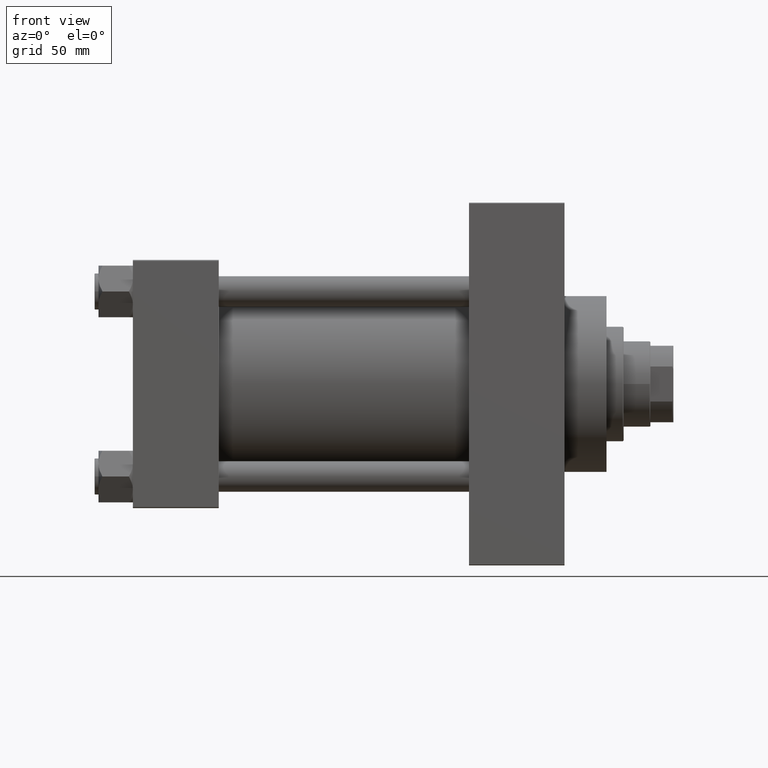
[diagram: clean part render]
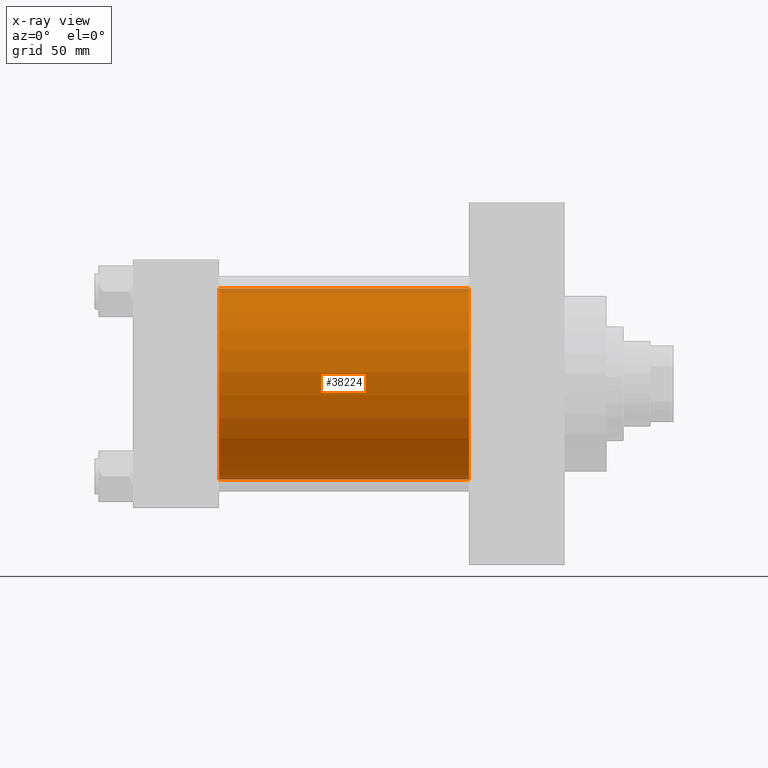
[diagram: x-ray — body ghosted, one internal face saturated and labeled with its STEP entity id]
A machine part, front view, then the same camera in x-ray: the body is ghosted and one INTERNAL B-rep face — a face not visible from any outside direction — is saturated and labeled: STEP entity #38224.
In plain terms, the highlighted cylindrical surface (partial cylindrical patch) has radius 50 mm, axis along (-1, -0, -0).
Its self-contained STEP definition (entity closure, byte-faithful):
#1214 = VECTOR ( 'NONE', #39667, 1000.000000000000000 ) ;
#1426 = VERTEX_POINT ( 'NONE', #24853 ) ;
#2626 = DIRECTION ( 'NONE',  ( 0.000000000000000000, 0.000000000000000000, 1.000000000000000000 ) ) ;
#3476 = CARTESIAN_POINT ( 'NONE',  ( 176.0000000000000000, 3.521148781771555838E-15, -50.00000000000000000 ) ) ;
#3480 = CARTESIAN_POINT ( 'NONE',  ( 45.00000000000000000, 3.521148781771555838E-15, -50.00000000000000000 ) ) ;
#5120 = CIRCLE ( 'NONE', #19663, 50.00000000000000000 ) ;
#7468 = DIRECTION ( 'NONE',  ( 0.000000000000000000, 0.000000000000000000, -1.000000000000000000 ) ) ;
#11538 = EDGE_CURVE ( 'NONE', #49754, #36953, #41285, .T. ) ;
#11875 = EDGE_LOOP ( 'NONE', ( #20030, #15997, #42935, #39291 ) ) ;
#12009 = EDGE_CURVE ( 'NONE', #1426, #36953, #5120, .T. ) ;
#12361 = CARTESIAN_POINT ( 'NONE',  ( 176.0000000000000000, -2.602085213965210642E-15, 50.00000000000000000 ) ) ;
#15997 = ORIENTED_EDGE ( 'NONE', *, *, #11538, .T. ) ;
#17568 = DIRECTION ( 'NONE',  ( -1.000000000000000000, -0.000000000000000000, -0.000000000000000000 ) ) ;
#19663 = AXIS2_PLACEMENT_3D ( 'NONE', #30886, #31631, #50051 ) ;
#19993 = AXIS2_PLACEMENT_3D ( 'NONE', #45909, #39314, #7468 ) ;
#20030 = ORIENTED_EDGE ( 'NONE', *, *, #47010, .T. ) ;
#22077 = DIRECTION ( 'NONE',  ( -1.000000000000000000, -0.000000000000000000, -0.000000000000000000 ) ) ;
#24853 = CARTESIAN_POINT ( 'NONE',  ( 45.00000000000000000, -2.602085213965210642E-15, 50.00000000000000000 ) ) ;
#27565 = LINE ( 'NONE', #12361, #1214 ) ;
#28435 = VERTEX_POINT ( 'NONE', #31612 ) ;
#28713 = FACE_OUTER_BOUND ( 'NONE', #11875, .T. ) ;
#29469 = CARTESIAN_POINT ( 'NONE',  ( 176.0000000000000000, -2.602085213965210642E-15, 0.000000000000000000 ) ) ;
#30886 = CARTESIAN_POINT ( 'NONE',  ( 45.00000000000000000, -2.602085213965210642E-15, 0.000000000000000000 ) ) ;
#31612 = CARTESIAN_POINT ( 'NONE',  ( 176.0000000000000000, -2.602085213965210642E-15, 50.00000000000000000 ) ) ;
#31631 = DIRECTION ( 'NONE',  ( 1.000000000000000000, 0.000000000000000000, 0.000000000000000000 ) ) ;
#32620 = AXIS2_PLACEMENT_3D ( 'NONE', #29469, #17568, #2626 ) ;
#34578 = CIRCLE ( 'NONE', #19993, 50.00000000000000000 ) ;
#36953 = VERTEX_POINT ( 'NONE', #3480 ) ;
#38224 = ADVANCED_FACE ( 'NONE', ( #28713 ), #48153, .F. ) ;
#39291 = ORIENTED_EDGE ( 'NONE', *, *, #42043, .F. ) ;
#39314 = DIRECTION ( 'NONE',  ( 1.000000000000000000, 0.000000000000000000, 0.000000000000000000 ) ) ;
#39667 = DIRECTION ( 'NONE',  ( -1.000000000000000000, -0.000000000000000000, -0.000000000000000000 ) ) ;
#41285 = LINE ( 'NONE', #41542, #41431 ) ;
#41431 = VECTOR ( 'NONE', #22077, 1000.000000000000000 ) ;
#41542 = CARTESIAN_POINT ( 'NONE',  ( 176.0000000000000000, 3.521148781771555838E-15, -50.00000000000000000 ) ) ;
#42043 = EDGE_CURVE ( 'NONE', #28435, #1426, #27565, .T. ) ;
#42935 = ORIENTED_EDGE ( 'NONE', *, *, #12009, .F. ) ;
#45909 = CARTESIAN_POINT ( 'NONE',  ( 176.0000000000000000, -2.602085213965210642E-15, 0.000000000000000000 ) ) ;
#47010 = EDGE_CURVE ( 'NONE', #28435, #49754, #34578, .T. ) ;
#48153 = CYLINDRICAL_SURFACE ( 'NONE', #32620, 50.00000000000000000 ) ;
#49754 = VERTEX_POINT ( 'NONE', #3476 ) ;
#50051 = DIRECTION ( 'NONE',  ( 0.000000000000000000, 0.000000000000000000, -1.000000000000000000 ) ) ;